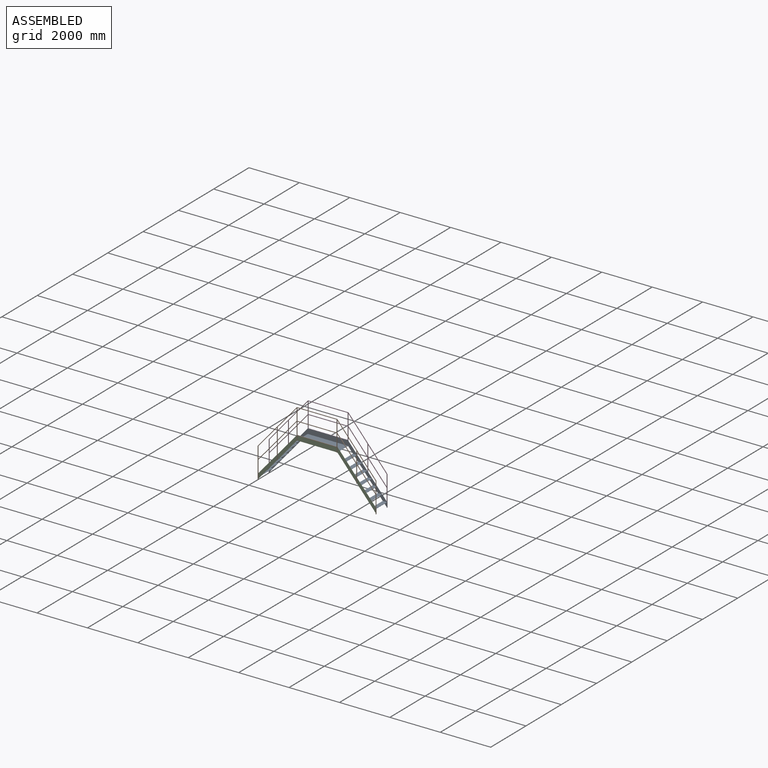
[diagram: assembled view]
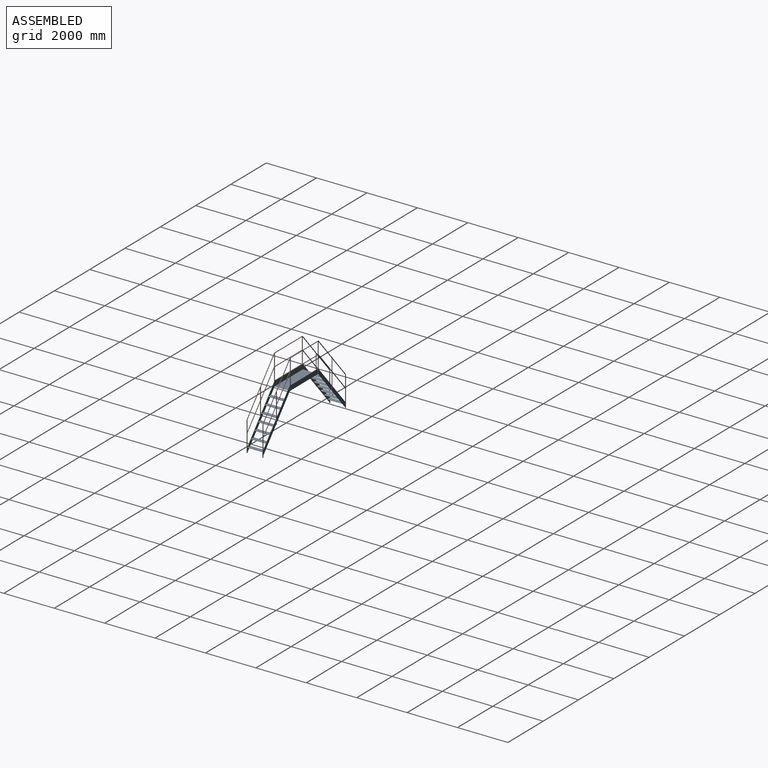
[diagram: assembled view, second angle]
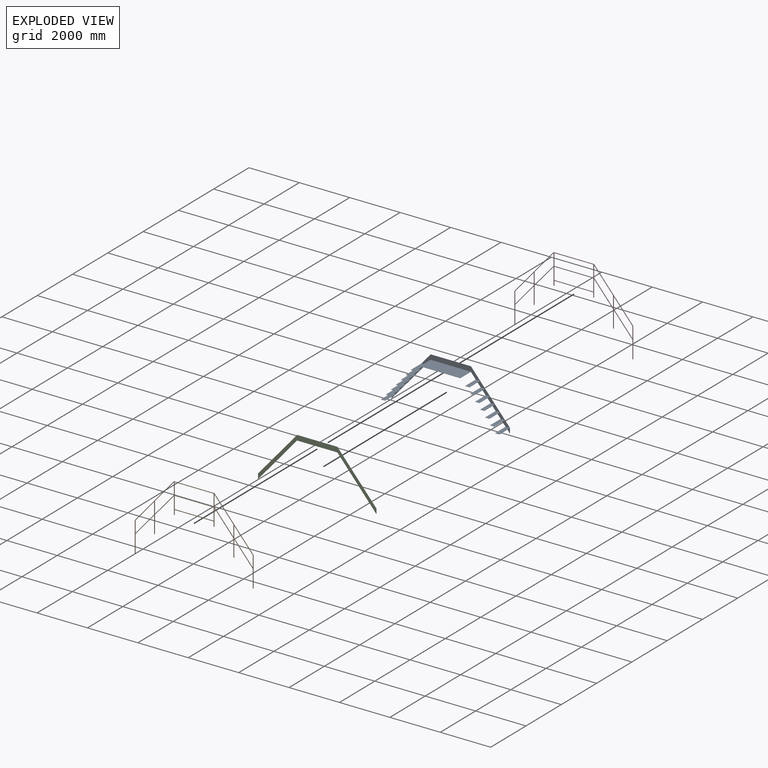
[diagram: exploded view]
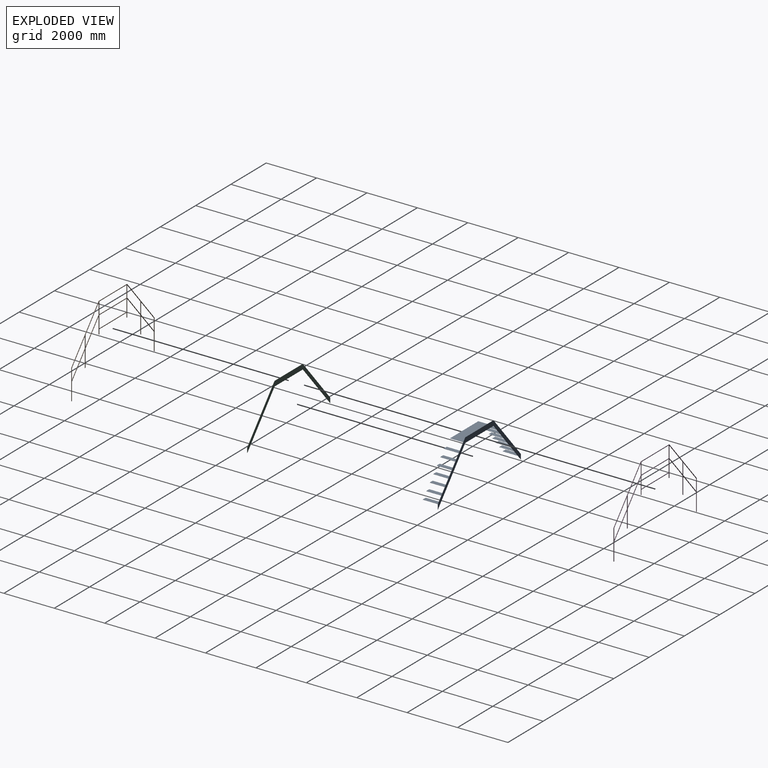
[diagram: exploded view, second angle]
ASSEMBLY  parts=4 mates=8
PART A: 82 faces, bbox 4700x605x2000 mm
  f0: plane 365.29x229.3mm, normal (0,-1,0), area 38640.1mm2, adj f18,f19,f20,f76,f77,f79
  f1: plane 194.9x167.83mm, normal (0,-1,0), area 16355.6mm2, adj f18,f19,f80
  f2: plane 365.37x229.3mm, normal (0,-1,0), area 38640.1mm2, adj f18,f20,f72,f73,f75
  f3: plane 365.37x229.3mm, normal (0,-1,0), area 38640.1mm2, adj f18,f20,f68,f69,f71
  f4: plane 365.37x229.3mm, normal (0,-1,0), area 38640.1mm2, adj f18,f20,f64,f65,f67
  f5: plane 365.37x229.3mm, normal (0,-1,0), area 38640.1mm2, adj f18,f20,f60,f61,f63
  f6: plane 365.37x229.3mm, normal (0,-1,0), area 38640.1mm2, adj f18,f20,f56,f57,f59
  f7: plane 2330.74x424.3mm, normal (0,-1,0), area 423703.2mm2, adj f16,f18,f20,f21,f22,f24,f25,f26
  f8: plane 195x167.92mm, normal (0,-1,0), area 16371.9mm2, adj f15,f16,f53
  f9: plane 365.29x229.3mm, normal (0,-1,0), area 38631.8mm2, adj f16,f22,f49,f50,f52
  f10: plane 365.37x229.3mm, normal (0,-1,0), area 38640.1mm2, adj f16,f22,f45,f46,f48
  f11: plane 365.37x229.3mm, normal (0,-1,0), area 38640.1mm2, adj f16,f22,f41,f42,f44
  f12: plane 365.37x229.3mm, normal (0,-1,0), area 38640.1mm2, adj f16,f22,f37,f38,f40
  f13: plane 365.37x229.3mm, normal (0,-1,0), area 38640.1mm2, adj f16,f22,f33,f34,f36
  f14: plane 365.37x229.3mm, normal (0,-1,0), area 38640.1mm2, adj f16,f22,f29,f30,f32
  f15: plane 605x200mm, normal (-1,0,0), area 4000mm2, adj f8,f16,f22,f23,f52,f53,f54
  f16: plane 1800x1550mm, normal (0.76,0,-0.65), area 39513.1mm2, adj f7,f8,f9,f10,f11,f12,f13,f14
  f17: plane 1600x605mm, normal (0,0,-1), area 968000mm2, adj f16,f18,f23,f24,f25,f27
  f18: plane 1800x1550mm, normal (-0.76,0,-0.65), area 39589.9mm2, adj f0,f1,f2,f3,f4,f5,f6,f7
  f19: plane 605x200mm, normal (1,0,0), area 4000mm2, adj f0,f1,f18,f20,f23,f79,f80,f81
  f20: plane 1800x1550mm, normal (0.76,0,0.65), area 11877mm2, adj f0,f2,f3,f4,f5,f6,f7,f19
  f21: plane 1600x5mm, normal (0,0,1), area 8000mm2, adj f7,f20,f22,f23
  f22: plane 1800x1550mm, normal (-0.76,0,0.65), area 11877mm2, adj f7,f9,f10,f11,f12,f13,f14,f15
  f23: plane 4700x2000mm, normal (0,1,0), area 940000mm2, adj f15,f16,f17,f18,f19,f20,f21,f22
  f24: plane 600x5mm, normal (-1,0,0), area 3000mm2, adj f7,f17,f26,f27
  f25: plane 600x5mm, normal (1,0,0), area 3000mm2, adj f7,f17,f26,f27
  f26: plane 1600x600mm, normal (0,0,1), area 960000mm2, adj f7,f24,f25,f27
  f27: plane 1600x5mm, normal (0,-1,0), area 8000mm2, adj f17,f24,f25,f26
  f28: plane 600x172.22mm, normal (0,0,1), area 103333.3mm2, adj f7,f16,f29,f31
  f29: plane 600x5mm, normal (-1,0,0), area 3000mm2, adj f14,f28,f30,f31
  f30: plane 600x167.92mm, normal (0,0,-1), area 100750mm2, adj f14,f16,f29,f31
  f31: plane 172.22x5mm, normal (0,-1,0), area 850.3mm2, adj f16,f28,f29,f30
  f32: plane 600x172.22mm, normal (0,0,1), area 103333.3mm2, adj f14,f16,f33,f35
  f33: plane 600x5mm, normal (-1,0,0), area 3000mm2, adj f13,f32,f34,f35
  f34: plane 600x167.92mm, normal (0,0,-1), area 100750mm2, adj f13,f16,f33,f35
  f35: plane 172.22x5mm, normal (0,-1,0), area 850.3mm2, adj f16,f32,f33,f34
  f36: plane 600x172.22mm, normal (0,0,1), area 103333.3mm2, adj f13,f16,f37,f39
  f37: plane 600x5mm, normal (-1,0,0), area 3000mm2, adj f12,f36,f38,f39
  f38: plane 600x167.92mm, normal (0,0,-1), area 100750mm2, adj f12,f16,f37,f39
  f39: plane 172.22x5mm, normal (0,-1,0), area 850.3mm2, adj f16,f36,f37,f38
  f40: plane 600x172.22mm, normal (0,0,1), area 103333.3mm2, adj f12,f16,f41,f43
  f41: plane 600x5mm, normal (-1,0,0), area 3000mm2, adj f11,f40,f42,f43
  f42: plane 600x167.92mm, normal (0,0,-1), area 100750mm2, adj f11,f16,f41,f43
  f43: plane 172.22x5mm, normal (0,-1,0), area 850.3mm2, adj f16,f40,f41,f42
  f44: plane 600x172.22mm, normal (0,0,1), area 103333.3mm2, adj f11,f16,f45,f47
  f45: plane 600x5mm, normal (-1,0,0), area 3000mm2, adj f10,f44,f46,f47
  f46: plane 600x167.92mm, normal (0,0,-1), area 100750mm2, adj f10,f16,f45,f47
  f47: plane 172.22x5mm, normal (0,-1,0), area 850.3mm2, adj f16,f44,f45,f46
  f48: plane 600x172.22mm, normal (0,0,1), area 103333.3mm2, adj f10,f16,f49,f51
  f49: plane 600x5mm, normal (-1,0,0), area 3000mm2, adj f9,f48,f50,f51
  f50: plane 600x167.92mm, normal (0,0,-1), area 100750mm2, adj f9,f16,f49,f51
  f51: plane 172.22x5mm, normal (0,-1,0), area 850.3mm2, adj f16,f48,f49,f50
  f52: plane 600x172.14mm, normal (0,0,1), area 103283.3mm2, adj f9,f15,f16,f54
  f53: plane 600x167.92mm, normal (0,0,-1), area 100750mm2, adj f8,f15,f16,f54
  f54: plane 172.14x5mm, normal (0,-1,0), area 842mm2, adj f15,f16,f52,f53
  f55: plane 600x172.22mm, normal (0,0,1), area 103333.3mm2, adj f7,f18,f57,f58
  f56: plane 600x167.92mm, normal (0,0,-1), area 100750mm2, adj f6,f18,f57,f58
  f57: plane 600x5mm, normal (1,0,0), area 3000mm2, adj f6,f55,f56,f58
  f58: plane 172.22x5mm, normal (0,-1,0), area 850.3mm2, adj f18,f55,f56,f57
  f59: plane 600x172.22mm, normal (0,0,1), area 103333.3mm2, adj f6,f18,f61,f62
  f60: plane 600x167.92mm, normal (0,0,-1), area 100750mm2, adj f5,f18,f61,f62
  f61: plane 600x5mm, normal (1,0,0), area 3000mm2, adj f5,f59,f60,f62
  f62: plane 172.22x5mm, normal (0,-1,0), area 850.3mm2, adj f18,f59,f60,f61
  f63: plane 600x172.22mm, normal (0,0,1), area 103333.3mm2, adj f5,f18,f65,f66
  f64: plane 600x167.92mm, normal (0,0,-1), area 100750mm2, adj f4,f18,f65,f66
  f65: plane 600x5mm, normal (1,0,0), area 3000mm2, adj f4,f63,f64,f66
  f66: plane 172.22x5mm, normal (0,-1,0), area 850.3mm2, adj f18,f63,f64,f65
  f67: plane 600x172.22mm, normal (0,0,1), area 103333.3mm2, adj f4,f18,f69,f70
  f68: plane 600x167.92mm, normal (0,0,-1), area 100750mm2, adj f3,f18,f69,f70
  f69: plane 600x5mm, normal (1,0,0), area 3000mm2, adj f3,f67,f68,f70
  f70: plane 172.22x5mm, normal (0,-1,0), area 850.3mm2, adj f18,f67,f68,f69
  f71: plane 600x172.22mm, normal (0,0,1), area 103333.3mm2, adj f3,f18,f73,f74
  f72: plane 600x167.92mm, normal (0,0,-1), area 100750mm2, adj f2,f18,f73,f74
  f73: plane 600x5mm, normal (1,0,0), area 3000mm2, adj f2,f71,f72,f74
  f74: plane 172.22x5mm, normal (0,-1,0), area 850.3mm2, adj f18,f71,f72,f73
  f75: plane 600x172.22mm, normal (0,0,1), area 103333.3mm2, adj f2,f18,f77,f78
  f76: plane 600x167.92mm, normal (0,0,-1), area 100750mm2, adj f0,f18,f77,f78
  f77: plane 600x5mm, normal (1,0,0), area 3000mm2, adj f0,f75,f76,f78
  f78: plane 172.22x5mm, normal (0,-1,0), area 850.3mm2, adj f18,f75,f76,f77
  f79: plane 600x172.14mm, normal (0,0,1), area 103283.2mm2, adj f0,f18,f19,f81
  f80: plane 600x167.83mm, normal (0,0,-1), area 100699.9mm2, adj f1,f18,f19,f81
  f81: plane 172.14x5mm, normal (0,-1,0), area 849.9mm2, adj f18,f19,f79,f80
PART B: 52 faces, bbox 4700x20x3000 mm
  f0: plane 470x20mm, normal (1,0,0), area 9400mm2, adj f1,f49,f50,f51
  f1: plane 1560x20mm, normal (0,0,-1), area 31200mm2, adj f0,f2,f50,f51
  f2: plane 470x20mm, normal (-1,0,0), area 9400mm2, adj f1,f49,f50,f51
  f3: plane 459.35x20mm, normal (1,0,0), area 9187mm2, adj f4,f43,f50,f51
  f4: plane 866.2x745.9mm, normal (0.76,0,-0.65), area 22861.9mm2, adj f3,f5,f50,f51
  f5: plane 459.35x20mm, normal (-1,0,0), area 9187mm2, adj f4,f43,f50,f51
  f6: plane 887.35x764.1mm, normal (0.76,0,-0.65), area 23420mm2, adj f7,f44,f50,f51
  f7: plane 459.35x20mm, normal (-1,0,0), area 9187mm2, adj f6,f8,f50,f51
  f8: plane 887.35x764.1mm, normal (-0.76,0,0.65), area 23420mm2, adj f7,f44,f50,f51
  f9: plane 866.2x745.9mm, normal (-0.76,0,-0.65), area 22861.9mm2, adj f10,f45,f50,f51
  f10: plane 459.35x20mm, normal (-1,0,0), area 9187mm2, adj f9,f11,f50,f51
  f11: plane 866.2x745.9mm, normal (0.76,0,0.65), area 22861.9mm2, adj f10,f45,f50,f51
  f12: plane 866.2x745.9mm, normal (0.76,0,-0.65), area 22861.9mm2, adj f13,f46,f50,f51
  f13: plane 682.9x20mm, normal (-1,0,0), area 13658mm2, adj f12,f14,f50,f51
  f14: plane 26.77x20mm, normal (0.8,0,-0.6), area 668.4mm2, adj f13,f15,f50,f51
  f15: plane 679.35x20mm, normal (1,0,0), area 13587mm2, adj f14,f16,f50,f51
  f16: plane 887.35x764.1mm, normal (0.76,0,-0.65), area 23420mm2, adj f15,f17,f50,f51
  f17: plane 679.35x20mm, normal (-1,0,0), area 13587mm2, adj f16,f18,f50,f51
  f18: plane 20x20mm, normal (0,0,-1), area 400mm2, adj f17,f19,f50,f51
  f19: plane 184.9x20mm, normal (1,0,0), area 3698mm2, adj f18,f20,f50,f51
  f20: plane 1560x20mm, normal (0,0,-1), area 31200mm2, adj f19,f21,f50,f51
  f21: plane 184.9x20mm, normal (-1,0,0), area 3698mm2, adj f20,f22,f50,f51
  f22: plane 20x20mm, normal (0,0,-1), area 400mm2, adj f21,f23,f50,f51
  f23: plane 679.35x20mm, normal (1,0,0), area 13587mm2, adj f22,f24,f50,f51
  f24: plane 887.35x764.1mm, normal (-0.76,0,-0.65), area 23420mm2, adj f23,f25,f50,f51
  f25: plane 679.35x20mm, normal (-1,0,0), area 13587mm2, adj f24,f26,f50,f51
  f26: plane 21.06x20mm, normal (-0.73,0,-0.69), area 580.9mm2, adj f25,f27,f50,f51
  f27: plane 677.19x20mm, normal (1,0,0), area 13543.7mm2, adj f26,f28,f50,f51
  f28: plane 866.2x745.9mm, normal (-0.76,0,-0.65), area 22861.9mm2, adj f27,f29,f50,f51
  f29: plane 702.58x20mm, normal (-1,0,0), area 14051.5mm2, adj f28,f30,f50,f51
  f30: plane 20x20mm, normal (0,0,-1), area 400mm2, adj f29,f31,f50,f51
  f31: plane 1200x20mm, normal (1,0,0), area 24000mm2, adj f30,f32,f50,f51
  f32: plane 1800x1550mm, normal (0.76,0,0.65), area 47507.9mm2, adj f31,f33,f50,f51
  f33: plane 1600x20mm, normal (0,0,1), area 32000mm2, adj f32,f34,f50,f51
  f34: plane 1800x1550mm, normal (-0.76,0,0.65), area 47507.9mm2, adj f33,f35,f50,f51
  f35: plane 1200x20mm, normal (-1,0,0), area 24000mm2, adj f34,f36,f50,f51
  f36: plane 20x20mm, normal (0,0,-1), area 400mm2, adj f35,f46,f50,f51
  f37: plane 459.35x20mm, normal (1,0,0), area 9187mm2, adj f38,f47,f50,f51
  f38: plane 887.35x764.1mm, normal (-0.76,0,-0.65), area 23420mm2, adj f37,f39,f50,f51
  f39: plane 459.35x20mm, normal (-1,0,0), area 9187mm2, adj f38,f47,f50,f51
  f40: plane 485.1x20mm, normal (1,0,0), area 9702mm2, adj f41,f48,f50,f51
  f41: plane 1560x20mm, normal (0,0,-1), area 31200mm2, adj f40,f42,f50,f51
  f42: plane 485.1x20mm, normal (-1,0,0), area 9702mm2, adj f41,f48,f50,f51
  f43: plane 866.2x745.9mm, normal (-0.76,0,0.65), area 22861.9mm2, adj f3,f5,f50,f51
  f44: plane 459.35x20mm, normal (1,0,0), area 9187mm2, adj f6,f8,f50,f51
  f45: plane 459.35x20mm, normal (1,0,0), area 9187mm2, adj f9,f11,f50,f51
  f46: plane 702.58x20mm, normal (1,0,0), area 14051.5mm2, adj f12,f36,f50,f51
  f47: plane 887.35x764.1mm, normal (0.76,0,0.65), area 23420mm2, adj f37,f39,f50,f51
  f48: plane 1560x20mm, normal (0,0,1), area 31200mm2, adj f40,f42,f50,f51
  f49: plane 1560x20mm, normal (0,0,1), area 31200mm2, adj f0,f2,f50,f51
  f50: plane 4700x3000mm, normal (0,-1,0), area 423205.9mm2, adj f0,f1,f2,f3,f4,f5,f6,f7
  f51: plane 4700x3000mm, normal (0,1,0), area 423205.9mm2, adj f0,f1,f2,f3,f4,f5,f6,f7
PART C: 10 faces, bbox 4700x5x2000 mm
  f0: plane 200x5mm, normal (-1,0,0), area 1000mm2, adj f1,f7,f8,f9
  f1: plane 1800x1550mm, normal (0.76,0,-0.65), area 11877mm2, adj f0,f2,f8,f9
  f2: plane 1600x5mm, normal (0,0,-1), area 8000mm2, adj f1,f3,f8,f9
  f3: plane 1800x1550mm, normal (-0.76,0,-0.65), area 11877mm2, adj f2,f4,f8,f9
  f4: plane 200x5mm, normal (1,0,0), area 1000mm2, adj f3,f5,f8,f9
  f5: plane 1800x1550mm, normal (0.76,0,0.65), area 11877mm2, adj f4,f6,f8,f9
  f6: plane 1600x5mm, normal (0,0,1), area 8000mm2, adj f5,f7,f8,f9
  f7: plane 1800x1550mm, normal (-0.76,0,0.65), area 11877mm2, adj f0,f6,f8,f9
  f8: plane 4700x2000mm, normal (0,-1,0), area 940000mm2, adj f0,f1,f2,f3,f4,f5,f6,f7
  f9: plane 4700x2000mm, normal (0,1,0), area 940000mm2, adj f0,f1,f2,f3,f4,f5,f6,f7
PART D: same geometry as B
PLACE A t=(-1915.48,1009.37,-1217.65)mm
PLACE B t=(-365.48,399.37,1762.35)mm
PLACE C t=(-1915.48,404.37,-1217.65)mm
PLACE D t=(-365.48,1029.37,1762.35)mm
MATE planar B.f51 <-> C.f8  axis (0,1,0) through (434.3,399.37,655.91)mm
MATE planar B.f35 <-> C.f0  axis (-1,0,0) through (-1915.48,389.37,-617.65)mm
MATE planar C.f9 <-> A.f27  axis (0,1,0) through (434.52,404.37,88.74)mm
MATE planar B.f18 <-> A.f17  axis (0,0,-1) through (-355.48,389.37,582.35)mm
MATE planar D.f50 <-> A.f23  axis (0,-1,0) through (434.3,1009.37,655.91)mm
MATE planar D.f22 <-> A.f17  axis (0,0,-1) through (1224.52,1019.37,582.35)mm
MATE planar C.f2 <-> A.f17  axis (0,0,-1) through (434.52,401.87,582.35)mm
MATE planar D.f31 <-> A.f19  axis (1,0,0) through (2784.52,1019.37,-617.65)mm
